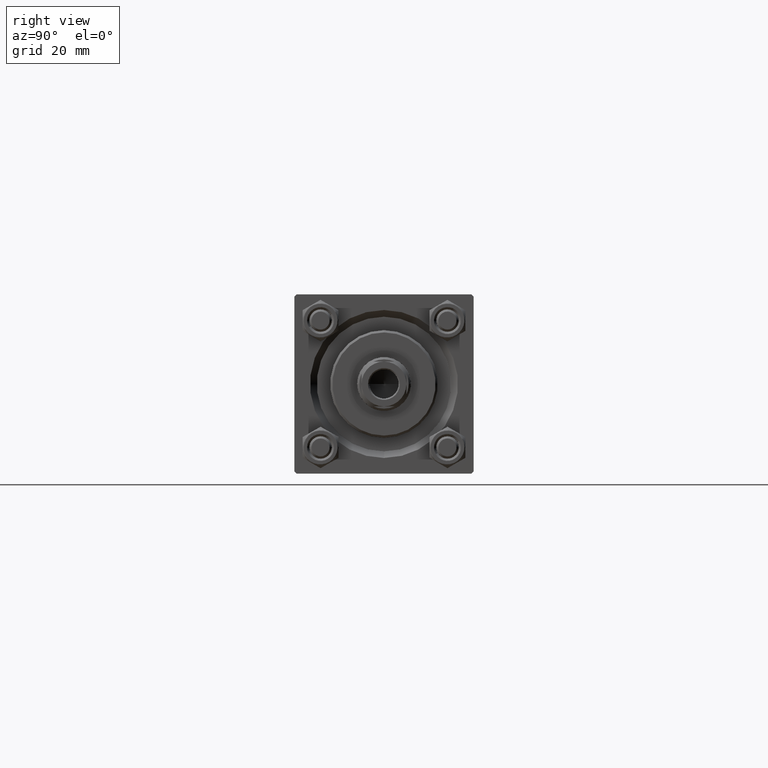
[diagram: clean part render]
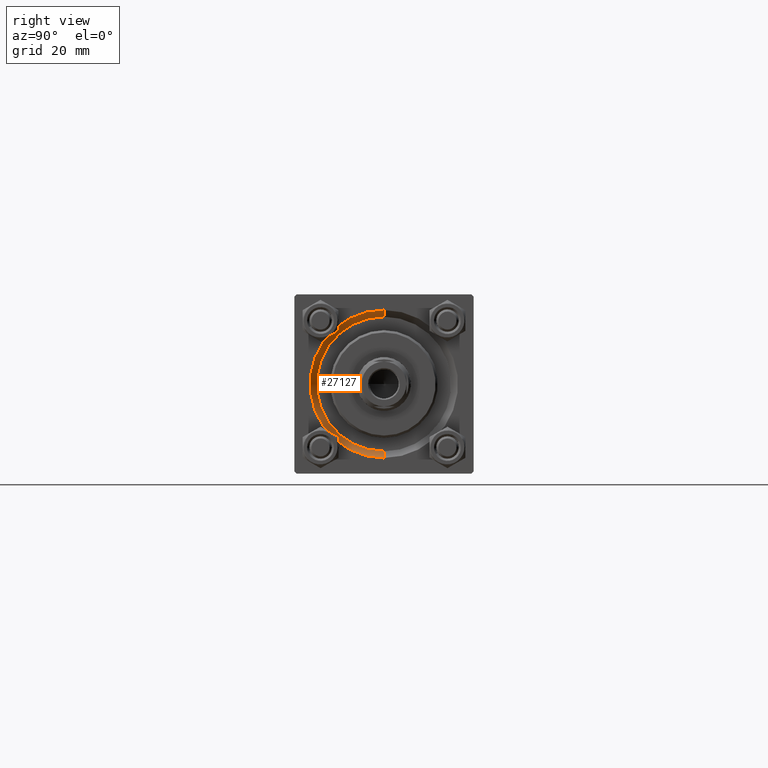
[diagram: same view with one face highlighted and labeled with its STEP entity id]
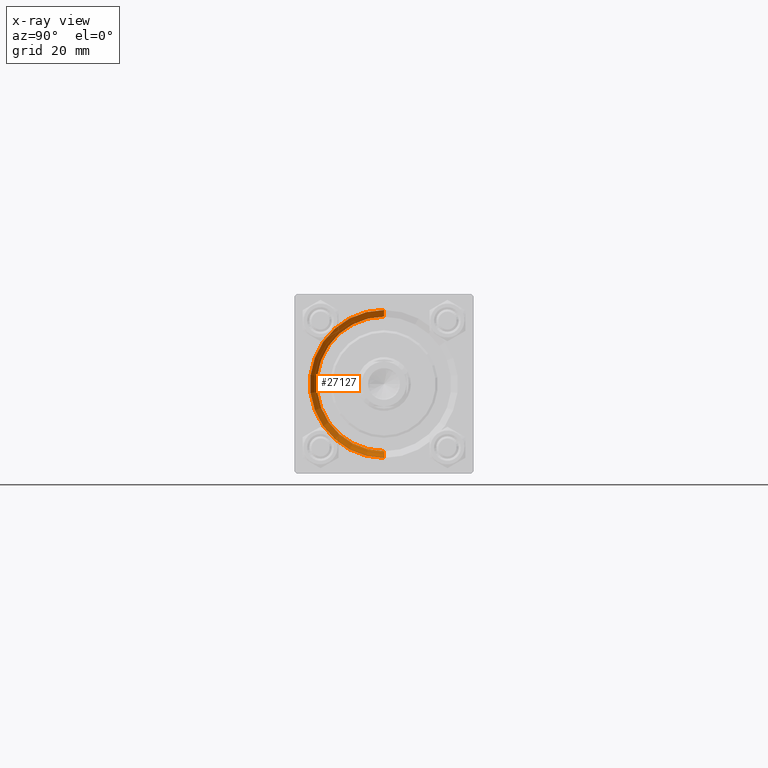
[diagram: x-ray of the same camera — body ghosted, the highlighted face saturated]
A machine part, right view. The second image highlights one B-rep face of the part: STEP entity #27127.
The next image is the same camera in x-ray: the body ghosted, the highlighted face saturated — about 0% of this face is hidden behind the body in this view.
In plain terms, the highlighted conical surface has half-angle 45 deg.
Its self-contained STEP definition (entity closure, byte-faithful):
#1805 = VERTEX_POINT ( 'NONE', #9920 ) ;
#2986 = CARTESIAN_POINT ( 'NONE',  ( 117.5000000000000000, 0.000000000000000000, 0.000000000000000000 ) ) ;
#6461 = ORIENTED_EDGE ( 'NONE', *, *, #34028, .T. ) ;
#6801 = DIRECTION ( 'NONE',  ( 0.7071067811865474617, 0.000000000000000000, -0.7071067811865474617 ) ) ;
#6869 = EDGE_CURVE ( 'NONE', #1805, #26285, #17956, .T. ) ;
#8435 = CARTESIAN_POINT ( 'NONE',  ( 119.0000000000000142, 0.000000000000000000, -16.50000000000001421 ) ) ;
#9907 = AXIS2_PLACEMENT_3D ( 'NONE', #19149, #26726, #11584 ) ;
#9920 = CARTESIAN_POINT ( 'NONE',  ( 117.5000000000000000, 1.836970198721029589E-15, 15.00000000000000000 ) ) ;
#11053 = ORIENTED_EDGE ( 'NONE', *, *, #18854, .F. ) ;
#11584 = DIRECTION ( 'NONE',  ( 0.000000000000000000, 0.000000000000000000, 1.000000000000000000 ) ) ;
#12782 = AXIS2_PLACEMENT_3D ( 'NONE', #32241, #28231, #48106 ) ;
#13413 = CONICAL_SURFACE ( 'NONE', #30342, 15.00000000000000000, 0.7853981633974482790 ) ;
#14568 = DIRECTION ( 'NONE',  ( 0.000000000000000000, 0.000000000000000000, -1.000000000000000000 ) ) ;
#16417 = VERTEX_POINT ( 'NONE', #8435 ) ;
#17871 = LINE ( 'NONE', #41292, #30269 ) ;
#17956 = CIRCLE ( 'NONE', #9907, 15.00000000000000000 ) ;
#18341 = DIRECTION ( 'NONE',  ( 1.000000000000000000, 0.000000000000000000, 0.000000000000000000 ) ) ;
#18854 = EDGE_CURVE ( 'NONE', #26285, #16417, #17871, .T. ) ;
#19149 = CARTESIAN_POINT ( 'NONE',  ( 117.5000000000000000, 0.000000000000000000, 0.000000000000000000 ) ) ;
#19404 = LINE ( 'NONE', #27478, #35355 ) ;
#19682 = ORIENTED_EDGE ( 'NONE', *, *, #37785, .F. ) ;
#24807 = VERTEX_POINT ( 'NONE', #45108 ) ;
#26285 = VERTEX_POINT ( 'NONE', #36413 ) ;
#26495 = DIRECTION ( 'NONE',  ( 0.7071067811865474617, 8.659560562354932858E-17, 0.7071067811865474617 ) ) ;
#26726 = DIRECTION ( 'NONE',  ( 1.000000000000000000, 0.000000000000000000, 0.000000000000000000 ) ) ;
#27127 = ADVANCED_FACE ( 'NONE', ( #37491 ), #13413, .F. ) ;
#27478 = CARTESIAN_POINT ( 'NONE',  ( 117.5000000000000000, 1.836970198721029589E-15, 15.00000000000000000 ) ) ;
#28231 = DIRECTION ( 'NONE',  ( -1.000000000000000000, -0.000000000000000000, -0.000000000000000000 ) ) ;
#30269 = VECTOR ( 'NONE', #6801, 1000.000000000000114 ) ;
#30342 = AXIS2_PLACEMENT_3D ( 'NONE', #2986, #18341, #14568 ) ;
#30822 = EDGE_LOOP ( 'NONE', ( #48146, #6461, #19682, #11053 ) ) ;
#32241 = CARTESIAN_POINT ( 'NONE',  ( 119.0000000000000142, 0.000000000000000000, 0.000000000000000000 ) ) ;
#34028 = EDGE_CURVE ( 'NONE', #1805, #24807, #19404, .T. ) ;
#35355 = VECTOR ( 'NONE', #26495, 1000.000000000000114 ) ;
#36413 = CARTESIAN_POINT ( 'NONE',  ( 117.5000000000000000, 0.000000000000000000, -15.00000000000000000 ) ) ;
#37491 = FACE_OUTER_BOUND ( 'NONE', #30822, .T. ) ;
#37785 = EDGE_CURVE ( 'NONE', #16417, #24807, #48220, .T. ) ;
#41292 = CARTESIAN_POINT ( 'NONE',  ( 117.5000000000000000, 0.000000000000000000, -15.00000000000000000 ) ) ;
#45108 = CARTESIAN_POINT ( 'NONE',  ( 119.0000000000000142, 2.020667218593134678E-15, 16.50000000000001421 ) ) ;
#48106 = DIRECTION ( 'NONE',  ( 0.000000000000000000, 0.000000000000000000, 1.000000000000000000 ) ) ;
#48146 = ORIENTED_EDGE ( 'NONE', *, *, #6869, .F. ) ;
#48220 = CIRCLE ( 'NONE', #12782, 16.50000000000001421 ) ;